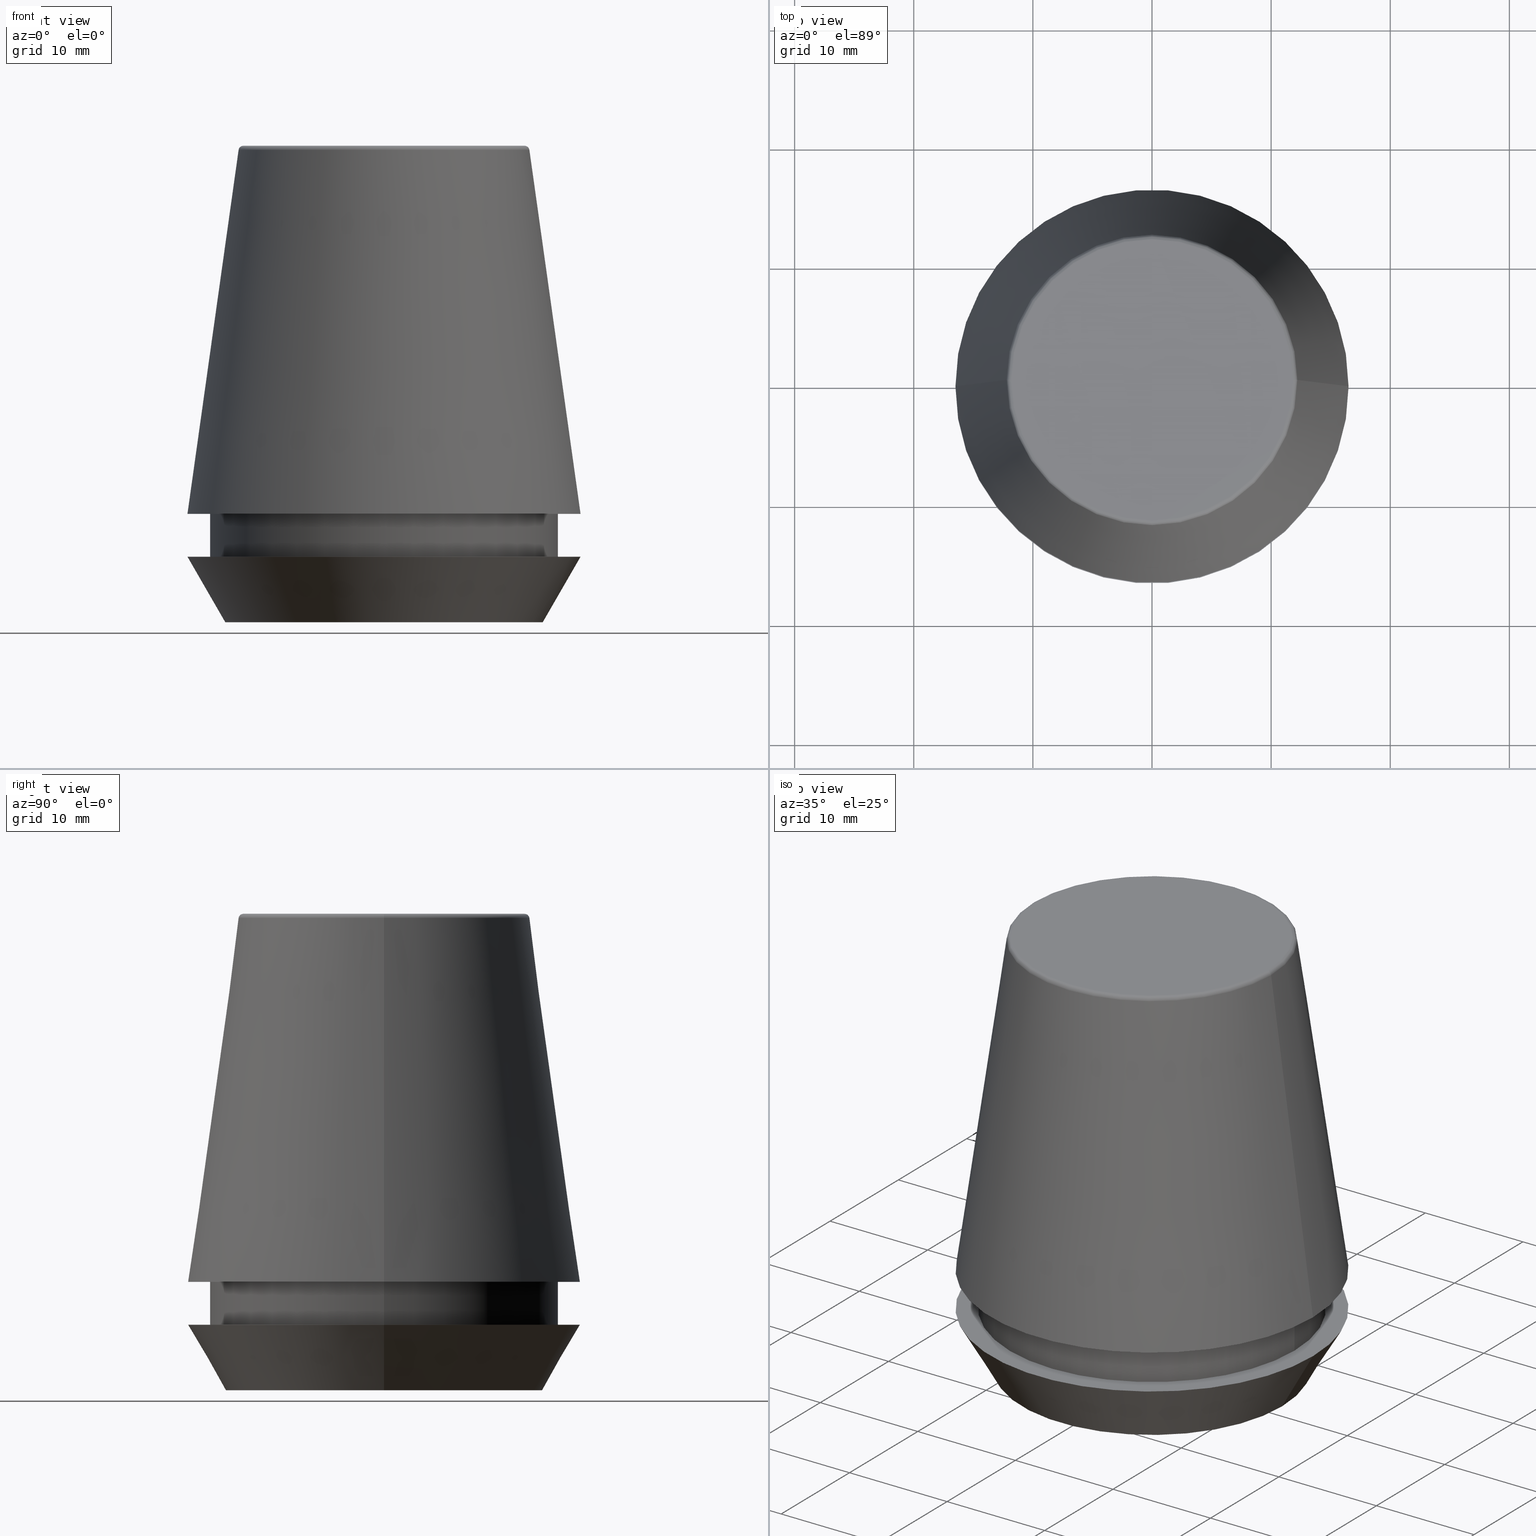
[diagram: canonical four-view strip — front | top / right | iso, engineering-drawing reading convention]
A machine part, canonical four-view strip (front | top / right | iso — engineering-drawing reading convention). The complete STEP part file that produces these views, byte-faithful:
ISO-10303-21;
HEADER;
FILE_DESCRIPTION (( 'STEP AP203' ),
    '1' );
FILE_NAME ('TAP COLLET ER 32G  10.0 X 8.0.STEP',
    '2019-04-09T11:13:42',
    ( '' ),
    ( '' ),
    'SwSTEP 2.0',
    'SolidWorks 2014',
    '' );
FILE_SCHEMA (( 'CONFIG_CONTROL_DESIGN' ));
ENDSEC;

DATA;
#1 = DIRECTION ( 'NONE',  ( 1.000000000000000000, 0.0000000000000000000, 0.0000000000000000000 ) ) ;
#2 = LINE ( 'NONE', #373, #281 ) ;
#3 = ORIENTED_EDGE ( 'NONE', *, *, #351, .F. ) ;
#4 = ORIENTED_EDGE ( 'NONE', *, *, #353, .F. ) ;
#5 = CC_DESIGN_PERSON_AND_ORGANIZATION_ASSIGNMENT ( #361, #282, ( #316 ) ) ;
#6 = ORIENTED_EDGE ( 'NONE', *, *, #206, .T. ) ;
#7 = CARTESIAN_POINT ( 'NONE',  ( -13.32457351945710200, 1.826228424826902600E-015, 0.0000000000000000000 ) ) ;
#8 = ORIENTED_EDGE ( 'NONE', *, *, #77, .F. ) ;
#9 = AXIS2_PLACEMENT_3D ( 'NONE', #218, #119, #387 ) ;
#10 = ADVANCED_BREP_SHAPE_REPRESENTATION ( 'TAP COLLET ER 32G  10.0 X 8.0', ( #213, #355 ), #143 ) ;
#11 = EDGE_LOOP ( 'NONE', ( #383, #170 ) ) ;
#12 = DIRECTION ( 'NONE',  ( -0.0000000000000000000, -0.0000000000000000000, 1.000000000000000000 ) ) ;
#13 = FACE_OUTER_BOUND ( 'NONE', #236, .T. ) ;
#14 = DIRECTION ( 'NONE',  ( 1.000000000000000000, 0.0000000000000000000, 0.0000000000000000000 ) ) ;
#15 = CARTESIAN_POINT ( 'NONE',  ( 0.0000000000000000000, 0.0000000000000000000, 5.500000000000005300 ) ) ;
#16 = ORIENTED_EDGE ( 'NONE', *, *, #303, .T. ) ;
#17 = EDGE_LOOP ( 'NONE', ( #4, #3, #22, #130 ) ) ;
#18 = CARTESIAN_POINT ( 'NONE',  ( 16.50000000000000000, 0.0000000000000000000, 5.500000000000005300 ) ) ;
#19 = CC_DESIGN_APPROVAL ( #46, ( #316 ) ) ;
#20 = CARTESIAN_POINT ( 'NONE',  ( 0.0000000000000000000, 0.0000000000000000000, 5.500000000000005300 ) ) ;
#21 = FACE_BOUND ( 'NONE', #11, .T. ) ;
#22 = ORIENTED_EDGE ( 'NONE', *, *, #72, .T. ) ;
#23 = AXIS2_PLACEMENT_3D ( 'NONE', #125, #223, #64 ) ;
#24 = PRODUCT_RELATED_PRODUCT_CATEGORY ( 'detail', '', ( #197 ) ) ;
#25 = PERSON_AND_ORGANIZATION ( #85, #379 ) ;
#26 = DIRECTION ( 'NONE',  ( -0.0000000000000000000, -0.0000000000000000000, 1.000000000000000000 ) ) ;
#27 = APPROVAL_DATE_TIME ( #47, #254 ) ;
#28 = CARTESIAN_POINT ( 'NONE',  ( 0.0000000000000000000, 0.0000000000000000000, 101.8074564848000400 ) ) ;
#29 = VERTEX_POINT ( 'NONE', #45 ) ;
#30 = DIRECTION ( 'NONE',  ( 0.0000000000000000000, 0.0000000000000000000, -1.000000000000000000 ) ) ;
#31 = CARTESIAN_POINT ( 'NONE',  ( 0.0000000000000000000, 0.0000000000000000000, 0.0000000000000000000 ) ) ;
#32 = DIRECTION ( 'NONE',  ( 0.0000000000000000000, 0.0000000000000000000, 1.000000000000000000 ) ) ;
#33 = DIRECTION ( 'NONE',  ( 1.224646799147353200E-016, 1.000000000000000000, 0.0000000000000000000 ) ) ;
#34 = DIRECTION ( 'NONE',  ( 1.000000000000000000, 0.0000000000000000000, 0.0000000000000000000 ) ) ;
#35 = CARTESIAN_POINT ( 'NONE',  ( 0.0000000000000000000, 0.0000000000000000000, 39.60000000000000100 ) ) ;
#36 = APPROVAL_STATUS ( 'not_yet_approved' ) ;
#37 = ORIENTED_EDGE ( 'NONE', *, *, #153, .F. ) ;
#38 = AXIS2_PLACEMENT_3D ( 'NONE', #176, #12, #364 ) ;
#39 = CARTESIAN_POINT ( 'NONE',  ( 0.0000000000000000000, 16.50000000000000000, 5.500000000000002700 ) ) ;
#40 = CC_DESIGN_SECURITY_CLASSIFICATION ( #316, ( #275 ) ) ;
#41 = APPROVAL_DATE_TIME ( #341, #46 ) ;
#42 = EDGE_CURVE ( 'NONE', #88, #129, #151, .T. ) ;
#43 = FACE_OUTER_BOUND ( 'NONE', #262, .T. ) ;
#44 = PERSON_AND_ORGANIZATION_ROLE ( 'creator' ) ;
#45 = CARTESIAN_POINT ( 'NONE',  ( -14.60000000000000000, 1.787984326755135800E-015, 9.099999999999997900 ) ) ;
#46 = APPROVAL ( #132, 'UNSPECIFIED' ) ;
#47 = DATE_AND_TIME ( #367, #335 ) ;
#48 = ORIENTED_EDGE ( 'NONE', *, *, #153, .T. ) ;
#49 = ORIENTED_EDGE ( 'NONE', *, *, #77, .T. ) ;
#50 = DIRECTION ( 'NONE',  ( 1.000000000000000000, 0.0000000000000000000, 0.0000000000000000000 ) ) ;
#51 = DIRECTION ( 'NONE',  ( 0.0000000000000000000, 0.0000000000000000000, -1.000000000000000000 ) ) ;
#52 = DIRECTION ( 'NONE',  ( -0.0000000000000000000, -0.0000000000000000000, 1.000000000000000000 ) ) ;
#53 = FACE_OUTER_BOUND ( 'NONE', #349, .T. ) ;
#54 = AXIS2_PLACEMENT_3D ( 'NONE', #113, #332, #301 ) ;
#55 = CARTESIAN_POINT ( 'NONE',  ( 0.0000000000000000000, 0.0000000000000000000, 9.099999999999997900 ) ) ;
#56 = DIRECTION ( 'NONE',  ( -0.0000000000000000000, -0.0000000000000000000, 1.000000000000000000 ) ) ;
#57 = EDGE_CURVE ( 'NONE', #284, #357, #205, .T. ) ;
#58 = CARTESIAN_POINT ( 'NONE',  ( 0.0000000000000000000, 0.0000000000000000000, 101.8074564848000400 ) ) ;
#59 = PERSON_AND_ORGANIZATION ( #85, #379 ) ;
#60 = ORIENTED_EDGE ( 'NONE', *, *, #375, .F. ) ;
#61 = ADVANCED_FACE ( 'NONE', ( #312 ), #252, .T. ) ;
#62 = CARTESIAN_POINT ( 'NONE',  ( 11.80989888411031400, 0.0000000000000000000, 39.60000000000000100 ) ) ;
#63 = CARTESIAN_POINT ( 'NONE',  ( 0.0000000000000000000, 0.0000000000000000000, 0.0000000000000000000 ) ) ;
#64 = DIRECTION ( 'NONE',  ( 1.000000000000000000, 0.0000000000000000000, 0.0000000000000000000 ) ) ;
#65 = EDGE_LOOP ( 'NONE', ( #230, #235, #75, #37 ) ) ;
#66 = LOCAL_TIME ( 16, 43, 42.00000000000000000, #111 ) ;
#67 = LINE ( 'NONE', #354, #365 ) ;
#68 = DIRECTION ( 'NONE',  ( -0.0000000000000000000, -0.0000000000000000000, 1.000000000000000000 ) ) ;
#69 = EDGE_CURVE ( 'NONE', #284, #29, #192, .T. ) ;
#70 = EDGE_LOOP ( 'NONE', ( #16, #152 ) ) ;
#71 = SECURITY_CLASSIFICATION_LEVEL ( 'unclassified' ) ;
#72 = EDGE_CURVE ( 'NONE', #194, #290, #216, .T. ) ;
#73 = AXIS2_PLACEMENT_3D ( 'NONE', #62, #271, #156 ) ;
#74 = CIRCLE ( 'NONE', #173, 13.32457351945710200 ) ;
#75 = ORIENTED_EDGE ( 'NONE', *, *, #303, .F. ) ;
#76 = APPROVAL_ROLE ( '' ) ;
#77 = EDGE_CURVE ( 'NONE', #209, #88, #120, .T. ) ;
#78 = ORIENTED_EDGE ( 'NONE', *, *, #69, .F. ) ;
#79 = AXIS2_PLACEMENT_3D ( 'NONE', #35, #89, #334 ) ;
#80 = CIRCLE ( 'NONE', #181, 13.32457351945710200 ) ;
#81 = CARTESIAN_POINT ( 'NONE',  ( 0.0000000000000000000, 0.0000000000000000000, 39.60000000000000100 ) ) ;
#82 = ORIENTED_EDGE ( 'NONE', *, *, #97, .F. ) ;
#83 = VECTOR ( 'NONE', #311, 1000.000000000000000 ) ;
#84 = AXIS2_PLACEMENT_3D ( 'NONE', #172, #142, #174 ) ;
#85 = PERSON ( 'UNSPECIFIED', 'UNSPECIFIED', 'UNSPECIFIED', ('UNSPECIFIED'), ('UNSPECIFIED'), ('UNSPECIFIED') ) ;
#86 = ORIENTED_EDGE ( 'NONE', *, *, #193, .F. ) ;
#87 = CARTESIAN_POINT ( 'NONE',  ( 0.0000000000000000000, 0.0000000000000000000, 0.0000000000000000000 ) ) ;
#88 = VERTEX_POINT ( 'NONE', #18 ) ;
#89 = DIRECTION ( 'NONE',  ( -0.0000000000000000000, -0.0000000000000000000, 1.000000000000000000 ) ) ;
#90 = EDGE_CURVE ( 'NONE', #209, #238, #80, .T. ) ;
#91 = CIRCLE ( 'NONE', #105, 14.60000000000000000 ) ;
#92 = ADVANCED_FACE ( 'NONE', ( #226, #324 ), #276, .F. ) ;
#93 = DIRECTION ( 'NONE',  ( -1.000000000000000000, 0.0000000000000000000, -0.0000000000000000000 ) ) ;
#94 = VERTEX_POINT ( 'NONE', #159 ) ;
#95 = CARTESIAN_POINT ( 'NONE',  ( -14.60000000000000000, 1.787984326755135800E-015, 101.8074564848000400 ) ) ;
#96 = AXIS2_PLACEMENT_3D ( 'NONE', #319, #30, #360 ) ;
#97 = EDGE_CURVE ( 'NONE', #238, #129, #2, .T. ) ;
#98 = DATE_AND_TIME ( #196, #183 ) ;
#99 = FACE_OUTER_BOUND ( 'NONE', #65, .T. ) ;
#100 = PERSON_AND_ORGANIZATION_ROLE ( 'design_supplier' ) ;
#101 = AXIS2_PLACEMENT_3D ( 'NONE', #207, #304, #14 ) ;
#102 = EDGE_LOOP ( 'NONE', ( #118, #149, #48, #339 ) ) ;
#103 = PERSON_AND_ORGANIZATION_ROLE ( 'creator' ) ;
#104 = DIRECTION ( 'NONE',  ( -0.0000000000000000000, -0.0000000000000000000, 1.000000000000000000 ) ) ;
#105 = AXIS2_PLACEMENT_3D ( 'NONE', #371, #369, #273 ) ;
#106 = CLOSED_SHELL ( 'NONE', ( #184, #287, #248, #155, #283, #134, #318, #92, #61, #199, #221, #352 ) ) ;
#107 = CIRCLE ( 'NONE', #117, 14.60000000000000000 ) ;
#108 = LOCAL_TIME ( 16, 43, 42.00000000000000000, #146 ) ;
#109 = APPLICATION_PROTOCOL_DEFINITION ( 'international standard', 'config_control_design', 1994, #325 ) ;
#110 =( LENGTH_UNIT ( ) NAMED_UNIT ( * ) SI_UNIT ( .MILLI., .METRE. ) );
#111 = COORDINATED_UNIVERSAL_TIME_OFFSET ( 5, 30, .AHEAD. ) ;
#112 = AXIS2_PLACEMENT_3D ( 'NONE', #256, #104, #220 ) ;
#113 = CARTESIAN_POINT ( 'NONE',  ( 0.0000000000000000000, 0.0000000000000000000, 9.099999999999997900 ) ) ;
#114 = AXIS2_PLACEMENT_3D ( 'NONE', #63, #336, #186 ) ;
#115 = CARTESIAN_POINT ( 'NONE',  ( 0.0000000000000000000, 0.0000000000000000000, 9.099999999999997900 ) ) ;
#116 = CC_DESIGN_PERSON_AND_ORGANIZATION_ASSIGNMENT ( #59, #44, ( #275 ) ) ;
#117 = AXIS2_PLACEMENT_3D ( 'NONE', #15, #272, #241 ) ;
#118 = ORIENTED_EDGE ( 'NONE', *, *, #215, .F. ) ;
#119 = DIRECTION ( 'NONE',  ( -0.0000000000000000000, -0.0000000000000000000, 1.000000000000000000 ) ) ;
#120 = LINE ( 'NONE', #127, #260 ) ;
#121 = LOCAL_TIME ( 16, 43, 42.00000000000000000, #138 ) ;
#122 = AXIS2_PLACEMENT_3D ( 'NONE', #81, #52, #225 ) ;
#123 = PERSON_AND_ORGANIZATION_ROLE ( 'design_owner' ) ;
#124 = DIRECTION ( 'NONE',  ( -0.4999999999999947300, 6.123233995736700700E-017, 0.8660254037844418200 ) ) ;
#125 = CARTESIAN_POINT ( 'NONE',  ( 0.0000000000000000000, 0.0000000000000000000, 0.0000000000000000000 ) ) ;
#126 = ORIENTED_EDGE ( 'NONE', *, *, #72, .F. ) ;
#127 = CARTESIAN_POINT ( 'NONE',  ( 13.32457351945710200, 0.0000000000000000000, 0.0000000000000000000 ) ) ;
#128 = CONICAL_SURFACE ( 'NONE', #338, 16.50032537154048700, 0.1396263401595395900 ) ;
#129 = VERTEX_POINT ( 'NONE', #188 ) ;
#130 = ORIENTED_EDGE ( 'NONE', *, *, #193, .T. ) ;
#131 = EDGE_CURVE ( 'NONE', #357, #284, #107, .T. ) ;
#132 = APPROVAL_STATUS ( 'not_yet_approved' ) ;
#133 = PERSON_AND_ORGANIZATION ( #85, #379 ) ;
#134 = ADVANCED_FACE ( 'NONE', ( #53 ), #370, .F. ) ;
#135 = AXIS2_PLACEMENT_3D ( 'NONE', #28, #376, #342 ) ;
#136 = DATE_TIME_ROLE ( 'creation_date' ) ;
#137 = FACE_OUTER_BOUND ( 'NONE', #158, .T. ) ;
#138 = COORDINATED_UNIVERSAL_TIME_OFFSET ( 5, 30, .AHEAD. ) ;
#139 = ORIENTED_EDGE ( 'NONE', *, *, #368, .F. ) ;
#140 = AXIS2_PLACEMENT_3D ( 'NONE', #58, #358, #204 ) ;
#141 = CIRCLE ( 'NONE', #348, 14.60000000000000000 ) ;
#142 = DIRECTION ( 'NONE',  ( -0.0000000000000000000, -0.0000000000000000000, 1.000000000000000000 ) ) ;
#143 =( GEOMETRIC_REPRESENTATION_CONTEXT ( 3 ) GLOBAL_UNCERTAINTY_ASSIGNED_CONTEXT ( ( #333 ) ) GLOBAL_UNIT_ASSIGNED_CONTEXT ( ( #110, #227, #145 ) ) REPRESENTATION_CONTEXT ( 'NONE', 'WORKASPACE' ) );
#144 = AXIS2_PLACEMENT_3D ( 'NONE', #253, #263, #1 ) ;
#145 =( NAMED_UNIT ( * ) SI_UNIT ( $, .STERADIAN. ) SOLID_ANGLE_UNIT ( ) );
#146 = COORDINATED_UNIVERSAL_TIME_OFFSET ( 5, 30, .AHEAD. ) ;
#147 = ORIENTED_EDGE ( 'NONE', *, *, #206, .F. ) ;
#148 = DIRECTION ( 'NONE',  ( -1.000000000000000000, 0.0000000000000000000, 0.0000000000000000000 ) ) ;
#149 = ORIENTED_EDGE ( 'NONE', *, *, #351, .T. ) ;
#150 = DIRECTION ( 'NONE',  ( -0.0000000000000000000, -0.0000000000000000000, 1.000000000000000000 ) ) ;
#151 = CIRCLE ( 'NONE', #112, 16.50000000000000000 ) ;
#152 = ORIENTED_EDGE ( 'NONE', *, *, #190, .T. ) ;
#153 = EDGE_CURVE ( 'NONE', #94, #280, #362, .T. ) ;
#154 = PLANE ( 'NONE',  #346 ) ;
#155 = ADVANCED_FACE ( 'NONE', ( #200 ), #279, .T. ) ;
#156 = DIRECTION ( 'NONE',  ( 0.0000000000000000000, 0.0000000000000000000, -1.000000000000000000 ) ) ;
#157 = DIRECTION ( 'NONE',  ( 1.000000000000000000, 0.0000000000000000000, 0.0000000000000000000 ) ) ;
#158 = EDGE_LOOP ( 'NONE', ( #270, #240, #286, #211 ) ) ;
#159 = CARTESIAN_POINT ( 'NONE',  ( 12.20600611160694300, 1.757755848304969800E-015, 39.65566924038402900 ) ) ;
#160 = ORIENTED_EDGE ( 'NONE', *, *, #251, .T. ) ;
#161 = FACE_OUTER_BOUND ( 'NONE', #70, .T. ) ;
#162 = CARTESIAN_POINT ( 'NONE',  ( 14.60000000000000000, 0.0000000000000000000, 5.500000000000005300 ) ) ;
#163 = SHAPE_DEFINITION_REPRESENTATION ( #285, #10 ) ;
#164 = ORIENTED_EDGE ( 'NONE', *, *, #90, .T. ) ;
#165 = DESIGN_CONTEXT ( 'detailed design', #328, 'design' ) ;
#166 = CC_DESIGN_DATE_AND_TIME_ASSIGNMENT ( #98, #313, ( #316 ) ) ;
#167 = EDGE_LOOP ( 'NONE', ( #385, #160 ) ) ;
#168 = DIRECTION ( 'NONE',  ( -1.000000000000000000, 0.0000000000000000000, 0.0000000000000000000 ) ) ;
#169 = AXIS2_PLACEMENT_3D ( 'NONE', #39, #245, #93 ) ;
#170 = ORIENTED_EDGE ( 'NONE', *, *, #368, .T. ) ;
#171 = ORIENTED_EDGE ( 'NONE', *, *, #353, .T. ) ;
#172 = CARTESIAN_POINT ( 'NONE',  ( 0.0000000000000000000, 0.0000000000000000000, 39.65566924038402900 ) ) ;
#173 = AXIS2_PLACEMENT_3D ( 'NONE', #31, #229, #384 ) ;
#174 = DIRECTION ( 'NONE',  ( 1.000000000000000000, 0.0000000000000000000, 0.0000000000000000000 ) ) ;
#175 = DIRECTION ( 'NONE',  ( 1.000000000000000000, 0.0000000000000000000, 0.0000000000000000000 ) ) ;
#176 = CARTESIAN_POINT ( 'NONE',  ( 0.0000000000000000000, 0.0000000000000000000, 40.00000000000000700 ) ) ;
#177 = CC_DESIGN_PERSON_AND_ORGANIZATION_ASSIGNMENT ( #25, #123, ( #197 ) ) ;
#178 = EDGE_LOOP ( 'NONE', ( #60, #171, #6, #126 ) ) ;
#179 = VECTOR ( 'NONE', #210, 1000.000000000000000 ) ;
#180 = CARTESIAN_POINT ( 'NONE',  ( 0.0000000000000000000, 0.0000000000000000000, 5.500000000000005300 ) ) ;
#181 = AXIS2_PLACEMENT_3D ( 'NONE', #306, #340, #157 ) ;
#182 = DIRECTION ( 'NONE',  ( -0.0000000000000000000, -0.0000000000000000000, 1.000000000000000000 ) ) ;
#183 = LOCAL_TIME ( 16, 43, 42.00000000000000000, #267 ) ;
#184 = ADVANCED_FACE ( 'NONE', ( #99 ), #380, .T. ) ;
#185 = EDGE_LOOP ( 'NONE', ( #78, #381, #378, #139 ) ) ;
#186 = DIRECTION ( 'NONE',  ( 1.000000000000000000, 0.0000000000000000000, 0.0000000000000000000 ) ) ;
#187 = EDGE_LOOP ( 'NONE', ( #164, #189, #300, #8 ) ) ;
#188 = CARTESIAN_POINT ( 'NONE',  ( -16.50000000000000000, 2.020667218593133100E-015, 5.500000000000005300 ) ) ;
#189 = ORIENTED_EDGE ( 'NONE', *, *, #97, .T. ) ;
#190 = EDGE_CURVE ( 'NONE', #374, #280, #323, .T. ) ;
#191 = CARTESIAN_POINT ( 'NONE',  ( 14.60000000000000000, 0.0000000000000000000, 9.099999999999997900 ) ) ;
#192 = LINE ( 'NONE', #95, #179 ) ;
#193 = EDGE_CURVE ( 'NONE', #290, #195, #268, .T. ) ;
#194 = VERTEX_POINT ( 'NONE', #269 ) ;
#195 = VERTEX_POINT ( 'NONE', #302 ) ;
#196 = CALENDAR_DATE ( 2019, 9, 4 ) ;
#197 = PRODUCT ( 'TAP COLLET ER 32G  10.0 X 8.0', 'TAP COLLET ER 32G  10.0 X 8.0', '', ( #208 ) ) ;
#198 = FACE_OUTER_BOUND ( 'NONE', #178, .T. ) ;
#199 = ADVANCED_FACE ( 'NONE', ( #13, #21 ), #154, .F. ) ;
#200 = FACE_OUTER_BOUND ( 'NONE', #187, .T. ) ;
#201 = APPROVAL_PERSON_ORGANIZATION ( #291, #359, #76 ) ;
#202 = EDGE_CURVE ( 'NONE', #357, #305, #315, .T. ) ;
#203 = DIRECTION ( 'NONE',  ( 1.000000000000000000, 0.0000000000000000000, 0.0000000000000000000 ) ) ;
#204 = DIRECTION ( 'NONE',  ( 1.000000000000000000, 0.0000000000000000000, 0.0000000000000000000 ) ) ;
#205 = CIRCLE ( 'NONE', #244, 14.60000000000000000 ) ;
#206 = EDGE_CURVE ( 'NONE', #195, #290, #356, .T. ) ;
#207 = CARTESIAN_POINT ( 'NONE',  ( 0.0000000000000000000, 0.0000000000000000000, 0.0000000000000000000 ) ) ;
#208 = MECHANICAL_CONTEXT ( 'NONE', #325, 'mechanical' ) ;
#209 = VERTEX_POINT ( 'NONE', #232 ) ;
#210 = DIRECTION ( 'NONE',  ( -0.0000000000000000000, -0.0000000000000000000, 1.000000000000000000 ) ) ;
#211 = ORIENTED_EDGE ( 'NONE', *, *, #202, .F. ) ;
#212 = EDGE_CURVE ( 'NONE', #238, #209, #74, .T. ) ;
#213 = MANIFOLD_SOLID_BREP ( 'Revolve1', #106 ) ;
#214 = APPROVAL_ROLE ( '' ) ;
#215 = EDGE_CURVE ( 'NONE', #194, #374, #331, .T. ) ;
#216 = LINE ( 'NONE', #308, #83 ) ;
#217 = TOROIDAL_SURFACE ( 'NONE', #122, 11.80989888411031400, 0.4000000000000026900 ) ;
#218 = CARTESIAN_POINT ( 'NONE',  ( 0.0000000000000000000, 0.0000000000000000000, 40.00000000000000700 ) ) ;
#219 = CYLINDRICAL_SURFACE ( 'NONE', #140, 14.60000000000000000 ) ;
#220 = DIRECTION ( 'NONE',  ( 1.000000000000000000, 0.0000000000000000000, 0.0000000000000000000 ) ) ;
#221 = ADVANCED_FACE ( 'NONE', ( #250 ), #243, .T. ) ;
#222 = APPROVAL_PERSON_ORGANIZATION ( #326, #254, #214 ) ;
#223 = DIRECTION ( 'NONE',  ( -0.0000000000000000000, -0.0000000000000000000, 1.000000000000000000 ) ) ;
#224 = VECTOR ( 'NONE', #150, 1000.000000000000000 ) ;
#225 = DIRECTION ( 'NONE',  ( 1.000000000000000000, 0.0000000000000000000, 0.0000000000000000000 ) ) ;
#226 = FACE_BOUND ( 'NONE', #231, .T. ) ;
#227 =( NAMED_UNIT ( * ) PLANE_ANGLE_UNIT ( ) SI_UNIT ( $, .RADIAN. ) );
#228 = DIRECTION ( 'NONE',  ( 0.0000000000000000000, -0.0000000000000000000, 1.000000000000000000 ) ) ;
#229 = DIRECTION ( 'NONE',  ( -0.0000000000000000000, -0.0000000000000000000, 1.000000000000000000 ) ) ;
#230 = ORIENTED_EDGE ( 'NONE', *, *, #375, .T. ) ;
#231 = EDGE_LOOP ( 'NONE', ( #259, #242 ) ) ;
#232 = CARTESIAN_POINT ( 'NONE',  ( 13.32457351945710200, 0.0000000000000000000, 0.0000000000000000000 ) ) ;
#233 = CC_DESIGN_PERSON_AND_ORGANIZATION_ASSIGNMENT ( #314, #100, ( #275 ) ) ;
#234 = DIRECTION ( 'NONE',  ( -1.000000000000000000, 1.224646799147352500E-016, 0.0000000000000000000 ) ) ;
#235 = ORIENTED_EDGE ( 'NONE', *, *, #215, .T. ) ;
#236 = EDGE_LOOP ( 'NONE', ( #86, #147 ) ) ;
#237 = DIRECTION ( 'NONE',  ( 0.0000000000000000000, 0.0000000000000000000, -1.000000000000000000 ) ) ;
#238 = VERTEX_POINT ( 'NONE', #7 ) ;
#239 = CARTESIAN_POINT ( 'NONE',  ( -16.50032537154048700, 0.0000000000000000000, 9.099999999999997900 ) ) ;
#240 = ORIENTED_EDGE ( 'NONE', *, *, #69, .T. ) ;
#241 = DIRECTION ( 'NONE',  ( 1.000000000000000000, 0.0000000000000000000, 0.0000000000000000000 ) ) ;
#242 = ORIENTED_EDGE ( 'NONE', *, *, #57, .F. ) ;
#243 = CONICAL_SURFACE ( 'NONE', #329, 16.50032537154048700, 0.1396263401595395900 ) ;
#244 = AXIS2_PLACEMENT_3D ( 'NONE', #20, #68, #277 ) ;
#245 = DIRECTION ( 'NONE',  ( 0.0000000000000000000, 0.0000000000000000000, -1.000000000000000000 ) ) ;
#246 = DIRECTION ( 'NONE',  ( 0.4999999999999947300, 0.0000000000000000000, 0.8660254037844418200 ) ) ;
#247 = CC_DESIGN_APPROVAL ( #254, ( #275 ) ) ;
#248 = ADVANCED_FACE ( 'NONE', ( #137 ), #219, .T. ) ;
#249 = CALENDAR_DATE ( 2019, 9, 4 ) ;
#250 = FACE_OUTER_BOUND ( 'NONE', #17, .T. ) ;
#251 = EDGE_CURVE ( 'NONE', #129, #88, #264, .T. ) ;
#252 = CYLINDRICAL_SURFACE ( 'NONE', #135, 14.60000000000000000 ) ;
#253 = CARTESIAN_POINT ( 'NONE',  ( 0.0000000000000000000, 0.0000000000000000000, 39.65566924038402900 ) ) ;
#254 = APPROVAL ( #382, 'UNSPECIFIED' ) ;
#255 = ORIENTED_EDGE ( 'NONE', *, *, #212, .F. ) ;
#256 = CARTESIAN_POINT ( 'NONE',  ( 0.0000000000000000000, 0.0000000000000000000, 5.500000000000005300 ) ) ;
#257 = CIRCLE ( 'NONE', #9, 11.80989888411031400 ) ;
#258 = CARTESIAN_POINT ( 'NONE',  ( 0.0000000000000000000, 16.50032537154048700, 9.099999999999999600 ) ) ;
#259 = ORIENTED_EDGE ( 'NONE', *, *, #131, .F. ) ;
#260 = VECTOR ( 'NONE', #246, 999.9999999999998900 ) ;
#261 = CALENDAR_DATE ( 2019, 9, 4 ) ;
#262 = EDGE_LOOP ( 'NONE', ( #82, #294, #49, #266 ) ) ;
#263 = DIRECTION ( 'NONE',  ( -0.0000000000000000000, -0.0000000000000000000, 1.000000000000000000 ) ) ;
#264 = CIRCLE ( 'NONE', #299, 16.50000000000000000 ) ;
#265 = DIRECTION ( 'NONE',  ( 0.1391731009600586900, 1.704378926181473100E-017, -0.9902680687415712500 ) ) ;
#266 = ORIENTED_EDGE ( 'NONE', *, *, #251, .F. ) ;
#267 = COORDINATED_UNIVERSAL_TIME_OFFSET ( 5, 30, .AHEAD. ) ;
#268 = CIRCLE ( 'NONE', #54, 16.50032537154048700 ) ;
#269 = CARTESIAN_POINT ( 'NONE',  ( -12.20600611160694300, 0.0000000000000000000, 39.65566924038402900 ) ) ;
#270 = ORIENTED_EDGE ( 'NONE', *, *, #131, .T. ) ;
#271 = DIRECTION ( 'NONE',  ( 0.0000000000000000000, -1.000000000000000000, 0.0000000000000000000 ) ) ;
#272 = DIRECTION ( 'NONE',  ( -0.0000000000000000000, -0.0000000000000000000, 1.000000000000000000 ) ) ;
#273 = DIRECTION ( 'NONE',  ( 1.000000000000000000, 0.0000000000000000000, 0.0000000000000000000 ) ) ;
#274 = PERSON_AND_ORGANIZATION ( #85, #379 ) ;
#275 = PRODUCT_DEFINITION_FORMATION_WITH_SPECIFIED_SOURCE ( 'ANY', '', #197, .NOT_KNOWN. ) ;
#276 = PLANE ( 'NONE',  #169 ) ;
#277 = DIRECTION ( 'NONE',  ( 1.000000000000000000, 0.0000000000000000000, 0.0000000000000000000 ) ) ;
#278 = AXIS2_PLACEMENT_3D ( 'NONE', #55, #56, #293 ) ;
#279 = CONICAL_SURFACE ( 'NONE', #101, 13.32457351945710200, 0.5235987755982927100 ) ;
#280 = VERTEX_POINT ( 'NONE', #347 ) ;
#281 = VECTOR ( 'NONE', #124, 999.9999999999998900 ) ;
#282 = PERSON_AND_ORGANIZATION_ROLE ( 'classification_officer' ) ;
#283 = ADVANCED_FACE ( 'NONE', ( #161 ), #295, .F. ) ;
#284 = VERTEX_POINT ( 'NONE', #330 ) ;
#285 = PRODUCT_DEFINITION_SHAPE ( 'NONE', 'NONE',  #372 ) ;
#286 = ORIENTED_EDGE ( 'NONE', *, *, #322, .F. ) ;
#287 = ADVANCED_FACE ( 'NONE', ( #198 ), #128, .T. ) ;
#288 = CC_DESIGN_DATE_AND_TIME_ASSIGNMENT ( #344, #136, ( #372 ) ) ;
#289 = FACE_OUTER_BOUND ( 'NONE', #102, .T. ) ;
#290 = VERTEX_POINT ( 'NONE', #239 ) ;
#291 = PERSON_AND_ORGANIZATION ( #85, #379 ) ;
#292 = APPLICATION_PROTOCOL_DEFINITION ( 'international standard', 'config_control_design', 1994, #328 ) ;
#293 = DIRECTION ( 'NONE',  ( 1.000000000000000000, 0.0000000000000000000, 0.0000000000000000000 ) ) ;
#294 = ORIENTED_EDGE ( 'NONE', *, *, #212, .T. ) ;
#295 = PLANE ( 'NONE',  #96 ) ;
#296 = CARTESIAN_POINT ( 'NONE',  ( -11.80989888411031400, 1.446295486667959300E-015, 39.60000000000000100 ) ) ;
#297 = APPROVAL_PERSON_ORGANIZATION ( #274, #46, #343 ) ;
#298 = CONICAL_SURFACE ( 'NONE', #23, 13.32457351945710200, 0.5235987755982927100 ) ;
#299 = AXIS2_PLACEMENT_3D ( 'NONE', #180, #182, #203 ) ;
#300 = ORIENTED_EDGE ( 'NONE', *, *, #42, .F. ) ;
#301 = DIRECTION ( 'NONE',  ( 1.000000000000000000, 0.0000000000000000000, 0.0000000000000000000 ) ) ;
#302 = CARTESIAN_POINT ( 'NONE',  ( 16.50032537154048700, 2.020707065114692300E-015, 9.099999999999997900 ) ) ;
#303 = EDGE_CURVE ( 'NONE', #280, #374, #257, .T. ) ;
#304 = DIRECTION ( 'NONE',  ( -0.0000000000000000000, -0.0000000000000000000, 1.000000000000000000 ) ) ;
#305 = VERTEX_POINT ( 'NONE', #191 ) ;
#306 = CARTESIAN_POINT ( 'NONE',  ( 0.0000000000000000000, 0.0000000000000000000, 0.0000000000000000000 ) ) ;
#307 = CARTESIAN_POINT ( 'NONE',  ( 14.60000000000000000, 0.0000000000000000000, 101.8074564848000400 ) ) ;
#308 = CARTESIAN_POINT ( 'NONE',  ( -16.50032537154048700, 0.0000000000000000000, 9.099999999999997900 ) ) ;
#309 = CC_DESIGN_PERSON_AND_ORGANIZATION_ASSIGNMENT ( #133, #103, ( #372 ) ) ;
#310 = CIRCLE ( 'NONE', #144, 12.20600611160694300 ) ;
#311 = DIRECTION ( 'NONE',  ( -0.1391731009600586900, 0.0000000000000000000, -0.9902680687415712500 ) ) ;
#312 = FACE_OUTER_BOUND ( 'NONE', #185, .T. ) ;
#313 = DATE_TIME_ROLE ( 'classification_date' ) ;
#314 = PERSON_AND_ORGANIZATION ( #85, #379 ) ;
#315 = LINE ( 'NONE', #307, #224 ) ;
#316 = SECURITY_CLASSIFICATION ( '', '', #71 ) ;
#317 = COORDINATED_UNIVERSAL_TIME_OFFSET ( 5, 30, .AHEAD. ) ;
#318 = ADVANCED_FACE ( 'NONE', ( #43 ), #298, .T. ) ;
#319 = CARTESIAN_POINT ( 'NONE',  ( 0.0000000000000000000, 11.80989888411031400, 40.00000000000000700 ) ) ;
#320 = ORIENTED_EDGE ( 'NONE', *, *, #90, .F. ) ;
#321 = CIRCLE ( 'NONE', #84, 12.20600611160694300 ) ;
#322 = EDGE_CURVE ( 'NONE', #305, #29, #141, .T. ) ;
#323 = CIRCLE ( 'NONE', #38, 11.80989888411031400 ) ;
#324 = FACE_OUTER_BOUND ( 'NONE', #167, .T. ) ;
#325 = APPLICATION_CONTEXT ( 'configuration controlled 3d designs of mechanical parts and assemblies' ) ;
#326 = PERSON_AND_ORGANIZATION ( #85, #379 ) ;
#327 = APPROVAL_DATE_TIME ( #337, #359 ) ;
#328 = APPLICATION_CONTEXT ( 'configuration controlled 3d designs of mechanical parts and assemblies' ) ;
#329 = AXIS2_PLACEMENT_3D ( 'NONE', #115, #237, #148 ) ;
#330 = CARTESIAN_POINT ( 'NONE',  ( -14.60000000000000000, 1.787984326755135800E-015, 5.500000000000005300 ) ) ;
#331 = CIRCLE ( 'NONE', #363, 0.4000000000000028000 ) ;
#332 = DIRECTION ( 'NONE',  ( -0.0000000000000000000, -0.0000000000000000000, 1.000000000000000000 ) ) ;
#333 = UNCERTAINTY_MEASURE_WITH_UNIT (LENGTH_MEASURE( 1.000000000000000100E-005 ), #110, 'distance_accuracy_value', 'NONE');
#334 = DIRECTION ( 'NONE',  ( 1.000000000000000000, 0.0000000000000000000, 0.0000000000000000000 ) ) ;
#335 = LOCAL_TIME ( 16, 43, 42.00000000000000000, #317 ) ;
#336 = DIRECTION ( 'NONE',  ( 0.0000000000000000000, -0.0000000000000000000, 1.000000000000000000 ) ) ;
#337 = DATE_AND_TIME ( #261, #108 ) ;
#338 = AXIS2_PLACEMENT_3D ( 'NONE', #366, #51, #168 ) ;
#339 = ORIENTED_EDGE ( 'NONE', *, *, #190, .F. ) ;
#340 = DIRECTION ( 'NONE',  ( -0.0000000000000000000, -0.0000000000000000000, 1.000000000000000000 ) ) ;
#341 = DATE_AND_TIME ( #249, #66 ) ;
#342 = DIRECTION ( 'NONE',  ( 1.000000000000000000, 0.0000000000000000000, 0.0000000000000000000 ) ) ;
#343 = APPROVAL_ROLE ( '' ) ;
#344 = DATE_AND_TIME ( #350, #121 ) ;
#345 = CC_DESIGN_APPROVAL ( #359, ( #372 ) ) ;
#346 = AXIS2_PLACEMENT_3D ( 'NONE', #258, #228, #34 ) ;
#347 = CARTESIAN_POINT ( 'NONE',  ( 11.80989888411031400, 0.0000000000000000000, 40.00000000000000700 ) ) ;
#348 = AXIS2_PLACEMENT_3D ( 'NONE', #386, #26, #50 ) ;
#349 = EDGE_LOOP ( 'NONE', ( #320, #255 ) ) ;
#350 = CALENDAR_DATE ( 2019, 9, 4 ) ;
#351 = EDGE_CURVE ( 'NONE', #194, #94, #321, .T. ) ;
#352 = ADVANCED_FACE ( 'NONE', ( #289 ), #217, .T. ) ;
#353 = EDGE_CURVE ( 'NONE', #94, #195, #67, .T. ) ;
#354 = CARTESIAN_POINT ( 'NONE',  ( 16.50032537154048700, 2.020707065114692300E-015, 9.099999999999997900 ) ) ;
#355 = AXIS2_PLACEMENT_3D ( 'NONE', #87, #32, #175 ) ;
#356 = CIRCLE ( 'NONE', #278, 16.50032537154048700 ) ;
#357 = VERTEX_POINT ( 'NONE', #162 ) ;
#358 = DIRECTION ( 'NONE',  ( -0.0000000000000000000, -0.0000000000000000000, 1.000000000000000000 ) ) ;
#359 = APPROVAL ( #36, 'UNSPECIFIED' ) ;
#360 = DIRECTION ( 'NONE',  ( -1.000000000000000000, 0.0000000000000000000, -0.0000000000000000000 ) ) ;
#361 = PERSON_AND_ORGANIZATION ( #85, #379 ) ;
#362 = CIRCLE ( 'NONE', #73, 0.4000000000000045200 ) ;
#363 = AXIS2_PLACEMENT_3D ( 'NONE', #296, #33, #234 ) ;
#364 = DIRECTION ( 'NONE',  ( 1.000000000000000000, 0.0000000000000000000, 0.0000000000000000000 ) ) ;
#365 = VECTOR ( 'NONE', #265, 1000.000000000000000 ) ;
#366 = CARTESIAN_POINT ( 'NONE',  ( 0.0000000000000000000, 0.0000000000000000000, 9.099999999999997900 ) ) ;
#367 = CALENDAR_DATE ( 2019, 9, 4 ) ;
#368 = EDGE_CURVE ( 'NONE', #29, #305, #91, .T. ) ;
#369 = DIRECTION ( 'NONE',  ( -0.0000000000000000000, -0.0000000000000000000, 1.000000000000000000 ) ) ;
#370 = PLANE ( 'NONE',  #114 ) ;
#371 = CARTESIAN_POINT ( 'NONE',  ( 0.0000000000000000000, 0.0000000000000000000, 9.099999999999997900 ) ) ;
#372 = PRODUCT_DEFINITION ( 'UNKNOWN', '', #275, #165 ) ;
#373 = CARTESIAN_POINT ( 'NONE',  ( -13.32457351945710200, 1.631789631060672300E-015, 0.0000000000000000000 ) ) ;
#374 = VERTEX_POINT ( 'NONE', #377 ) ;
#375 = EDGE_CURVE ( 'NONE', #94, #194, #310, .T. ) ;
#376 = DIRECTION ( 'NONE',  ( -0.0000000000000000000, -0.0000000000000000000, 1.000000000000000000 ) ) ;
#377 = CARTESIAN_POINT ( 'NONE',  ( -11.80989888411031400, 1.470550059081603400E-015, 40.00000000000000700 ) ) ;
#378 = ORIENTED_EDGE ( 'NONE', *, *, #202, .T. ) ;
#379 = ORGANIZATION ( 'UNSPECIFIED', 'UNSPECIFIED', '' ) ;
#380 = TOROIDAL_SURFACE ( 'NONE', #79, 11.80989888411031400, 0.4000000000000026900 ) ;
#381 = ORIENTED_EDGE ( 'NONE', *, *, #57, .T. ) ;
#382 = APPROVAL_STATUS ( 'not_yet_approved' ) ;
#383 = ORIENTED_EDGE ( 'NONE', *, *, #322, .T. ) ;
#384 = DIRECTION ( 'NONE',  ( 1.000000000000000000, 0.0000000000000000000, 0.0000000000000000000 ) ) ;
#385 = ORIENTED_EDGE ( 'NONE', *, *, #42, .T. ) ;
#386 = CARTESIAN_POINT ( 'NONE',  ( 0.0000000000000000000, 0.0000000000000000000, 9.099999999999997900 ) ) ;
#387 = DIRECTION ( 'NONE',  ( 1.000000000000000000, 0.0000000000000000000, 0.0000000000000000000 ) ) ;
ENDSEC;
END-ISO-10303-21;
